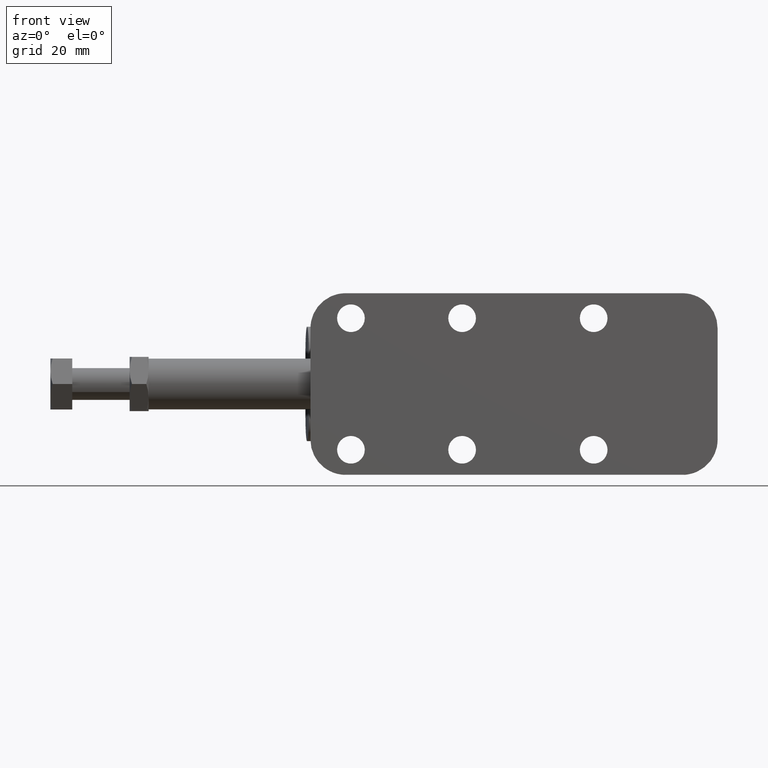
[diagram: clean part render]
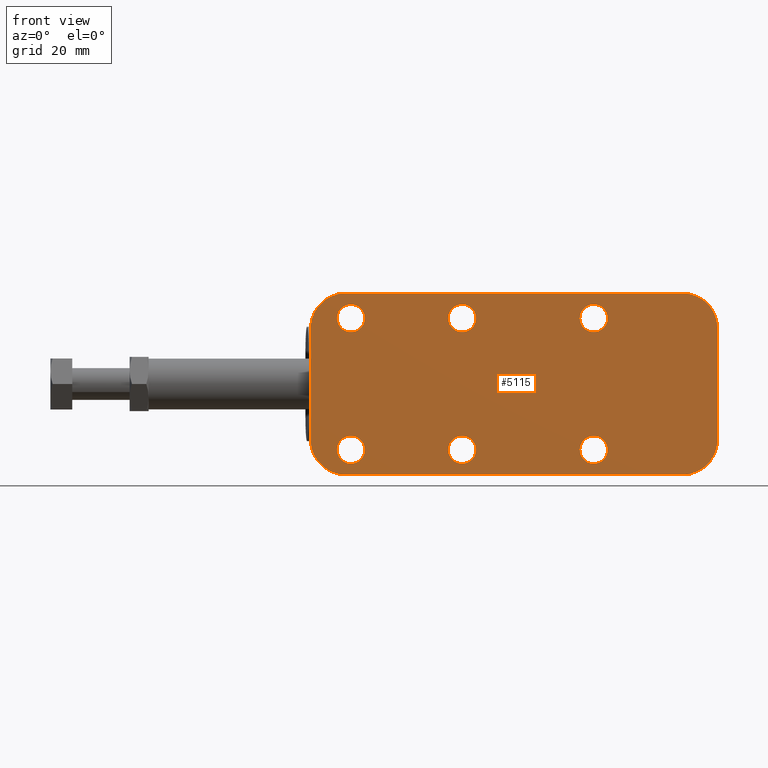
[diagram: same view with one face highlighted and labeled with its STEP entity id]
A machine part, front view. The second image highlights one B-rep face of the part: STEP entity #5115.
In plain terms, the highlighted planar face has unit normal (0, 1, 0).
Its self-contained STEP definition (entity closure, byte-faithful):
#9 = AXIS2_PLACEMENT_3D ( 'NONE', #6229, #4620, #496 ) ;
#20 = CARTESIAN_POINT ( 'NONE',  ( 17.05000000000000100, 0.0000000000000000000, 20.64999999999999900 ) ) ;
#29 = EDGE_CURVE ( 'NONE', #6149, #2345, #2316, .T. ) ;
#46 = DIRECTION ( 'NONE',  ( -1.000000000000000000, -0.0000000000000000000, 0.0000000000000000000 ) ) ;
#76 = CARTESIAN_POINT ( 'NONE',  ( 43.25000000000000000, 0.0000000000000000000, -20.65000000000001300 ) ) ;
#104 = DIRECTION ( 'NONE',  ( 1.000000000000000000, 0.0000000000000000000, 0.0000000000000000000 ) ) ;
#132 = DIRECTION ( 'NONE',  ( 0.0000000000000000000, 1.000000000000000000, 0.0000000000000000000 ) ) ;
#158 = LINE ( 'NONE', #5240, #2599 ) ;
#203 = CARTESIAN_POINT ( 'NONE',  ( 8.349999999999994300, 0.0000000000000000000, -20.64999999999999900 ) ) ;
#243 = CARTESIAN_POINT ( 'NONE',  ( 12.69999999999999900, 0.0000000000000000000, 20.64999999999999900 ) ) ;
#246 = CARTESIAN_POINT ( 'NONE',  ( 0.0000000000000000000, 0.0000000000000000000, -17.49999999999998900 ) ) ;
#260 = DIRECTION ( 'NONE',  ( 1.000000000000000000, 0.0000000000000000000, 0.0000000000000000000 ) ) ;
#279 = AXIS2_PLACEMENT_3D ( 'NONE', #6369, #3228, #104 ) ;
#350 = CARTESIAN_POINT ( 'NONE',  ( 127.8000000000000000, 0.0000000000000000000, -17.49999999999991500 ) ) ;
#396 = DIRECTION ( 'NONE',  ( 1.000000000000000000, 0.0000000000000000000, 0.0000000000000000000 ) ) ;
#427 = EDGE_CURVE ( 'NONE', #3949, #870, #2567, .T. ) ;
#496 = DIRECTION ( 'NONE',  ( 1.000000000000000000, 0.0000000000000000000, 0.0000000000000000000 ) ) ;
#527 = ORIENTED_EDGE ( 'NONE', *, *, #5809, .T. ) ;
#557 = DIRECTION ( 'NONE',  ( 0.0000000000000000000, 0.0000000000000000000, -1.000000000000000000 ) ) ;
#569 = DIRECTION ( 'NONE',  ( 0.0000000000000000000, 1.000000000000000000, 0.0000000000000000000 ) ) ;
#631 = CARTESIAN_POINT ( 'NONE',  ( 88.90000000000000600, 0.0000000000000000000, -20.65000000000002000 ) ) ;
#660 = AXIS2_PLACEMENT_3D ( 'NONE', #631, #4242, #1135 ) ;
#705 = AXIS2_PLACEMENT_3D ( 'NONE', #1041, #4662, #1559 ) ;
#740 = DIRECTION ( 'NONE',  ( 1.000000000000000000, 0.0000000000000000000, 0.0000000000000000000 ) ) ;
#772 = EDGE_LOOP ( 'NONE', ( #6240, #4571 ) ) ;
#776 = ORIENTED_EDGE ( 'NONE', *, *, #2353, .F. ) ;
#824 = AXIS2_PLACEMENT_3D ( 'NONE', #1161, #4808, #858 ) ;
#836 = FACE_OUTER_BOUND ( 'NONE', #1457, .T. ) ;
#851 = ORIENTED_EDGE ( 'NONE', *, *, #5134, .T. ) ;
#858 = DIRECTION ( 'NONE',  ( 1.000000000000000000, 0.0000000000000000000, 0.0000000000000000000 ) ) ;
#870 = VERTEX_POINT ( 'NONE', #246 ) ;
#889 = CARTESIAN_POINT ( 'NONE',  ( 12.69999999999999400, 0.0000000000000000000, -20.64999999999999900 ) ) ;
#894 = CARTESIAN_POINT ( 'NONE',  ( 51.95000000000000300, 0.0000000000000000000, 20.64999999999999900 ) ) ;
#928 = ORIENTED_EDGE ( 'NONE', *, *, #5400, .T. ) ;
#935 = DIRECTION ( 'NONE',  ( 0.0000000000000000000, 1.000000000000000000, 0.0000000000000000000 ) ) ;
#946 = VERTEX_POINT ( 'NONE', #4659 ) ;
#969 = CARTESIAN_POINT ( 'NONE',  ( 127.8000000000000000, 0.0000000000000000000, 28.50000000000000700 ) ) ;
#979 = DIRECTION ( 'NONE',  ( 1.000000000000000000, 0.0000000000000000000, 0.0000000000000000000 ) ) ;
#1003 = ORIENTED_EDGE ( 'NONE', *, *, #3844, .T. ) ;
#1023 = VERTEX_POINT ( 'NONE', #5728 ) ;
#1041 = CARTESIAN_POINT ( 'NONE',  ( 47.59999999999999400, 0.0000000000000000000, -20.65000000000001300 ) ) ;
#1135 = DIRECTION ( 'NONE',  ( 1.000000000000000000, 0.0000000000000000000, 0.0000000000000000000 ) ) ;
#1139 = CIRCLE ( 'NONE', #279, 4.350000000000006800 ) ;
#1146 = CIRCLE ( 'NONE', #5205, 4.349999999999999600 ) ;
#1155 = FACE_BOUND ( 'NONE', #772, .T. ) ;
#1161 = CARTESIAN_POINT ( 'NONE',  ( 12.69999999999999400, 0.0000000000000000000, -20.64999999999999900 ) ) ;
#1252 = VECTOR ( 'NONE', #46, 1000.000000000000000 ) ;
#1260 = VERTEX_POINT ( 'NONE', #2664 ) ;
#1368 = ORIENTED_EDGE ( 'NONE', *, *, #4939, .T. ) ;
#1388 = CARTESIAN_POINT ( 'NONE',  ( 93.25000000000001400, 0.0000000000000000000, -20.65000000000002000 ) ) ;
#1399 = AXIS2_PLACEMENT_3D ( 'NONE', #243, #3851, #740 ) ;
#1457 = EDGE_LOOP ( 'NONE', ( #3786, #1527, #4352, #776, #5299, #1793, #3144, #3421 ) ) ;
#1494 = CIRCLE ( 'NONE', #4754, 4.349999999999999600 ) ;
#1504 = DIRECTION ( 'NONE',  ( 0.0000000000000000000, 1.000000000000000000, 0.0000000000000000000 ) ) ;
#1527 = ORIENTED_EDGE ( 'NONE', *, *, #4811, .F. ) ;
#1541 = EDGE_CURVE ( 'NONE', #6621, #946, #3653, .T. ) ;
#1559 = DIRECTION ( 'NONE',  ( 1.000000000000000000, 0.0000000000000000000, 0.0000000000000000000 ) ) ;
#1565 = CARTESIAN_POINT ( 'NONE',  ( 116.7999999999999100, 1.110223024625156500E-013, -28.49999999999998600 ) ) ;
#1590 = EDGE_CURVE ( 'NONE', #5048, #6011, #2124, .T. ) ;
#1603 = VERTEX_POINT ( 'NONE', #5559 ) ;
#1697 = VERTEX_POINT ( 'NONE', #6286 ) ;
#1793 = ORIENTED_EDGE ( 'NONE', *, *, #4709, .T. ) ;
#1861 = EDGE_LOOP ( 'NONE', ( #1003, #851 ) ) ;
#2072 = ORIENTED_EDGE ( 'NONE', *, *, #5251, .T. ) ;
#2076 = CARTESIAN_POINT ( 'NONE',  ( 88.90000000000000600, 0.0000000000000000000, -20.65000000000002000 ) ) ;
#2085 = CARTESIAN_POINT ( 'NONE',  ( 88.90000000000000600, 0.0000000000000000000, 20.64999999999999900 ) ) ;
#2124 = CIRCLE ( 'NONE', #5357, 4.350000000000001400 ) ;
#2164 = CARTESIAN_POINT ( 'NONE',  ( 47.60000000000000100, 0.0000000000000000000, 20.64999999999999900 ) ) ;
#2227 = AXIS2_PLACEMENT_3D ( 'NONE', #4045, #935, #4560 ) ;
#2237 = FACE_BOUND ( 'NONE', #5567, .T. ) ;
#2307 = DIRECTION ( 'NONE',  ( 1.000000000000000000, 0.0000000000000000000, 0.0000000000000000000 ) ) ;
#2316 = CIRCLE ( 'NONE', #5476, 10.99999999999999600 ) ;
#2345 = VERTEX_POINT ( 'NONE', #1565 ) ;
#2353 = EDGE_CURVE ( 'NONE', #1697, #6149, #158, .T. ) ;
#2401 = FACE_BOUND ( 'NONE', #6737, .T. ) ;
#2486 = CIRCLE ( 'NONE', #5098, 4.349999999999999600 ) ;
#2553 = DIRECTION ( 'NONE',  ( -1.000000000000000000, -0.0000000000000000000, 0.0000000000000000000 ) ) ;
#2567 = LINE ( 'NONE', #4638, #6583 ) ;
#2599 = VECTOR ( 'NONE', #557, 1000.000000000000000 ) ;
#2606 = DIRECTION ( 'NONE',  ( 1.000000000000000000, 0.0000000000000000000, 0.0000000000000000000 ) ) ;
#2636 = AXIS2_PLACEMENT_3D ( 'NONE', #6108, #2980, #6642 ) ;
#2648 = CARTESIAN_POINT ( 'NONE',  ( 127.8000000000000000, 0.0000000000000000000, -28.49999999999998600 ) ) ;
#2664 = CARTESIAN_POINT ( 'NONE',  ( 8.349999999999999600, 0.0000000000000000000, 20.64999999999999900 ) ) ;
#2682 = CARTESIAN_POINT ( 'NONE',  ( 116.8000000000000000, 0.0000000000000000000, 17.50000000000000700 ) ) ;
#2692 = AXIS2_PLACEMENT_3D ( 'NONE', #3669, #569, #4179 ) ;
#2693 = DIRECTION ( 'NONE',  ( 1.000000000000000000, 0.0000000000000000000, 0.0000000000000000000 ) ) ;
#2841 = CARTESIAN_POINT ( 'NONE',  ( 43.25000000000000700, 0.0000000000000000000, 20.64999999999999900 ) ) ;
#2862 = VERTEX_POINT ( 'NONE', #76 ) ;
#2980 = DIRECTION ( 'NONE',  ( 0.0000000000000000000, 1.000000000000000000, 0.0000000000000000000 ) ) ;
#3000 = CARTESIAN_POINT ( 'NONE',  ( 11.00000000000007800, 0.0000000000000000000, 28.50000000000000700 ) ) ;
#3144 = ORIENTED_EDGE ( 'NONE', *, *, #5571, .F. ) ;
#3201 = DIRECTION ( 'NONE',  ( 1.000000000000000000, 0.0000000000000000000, 0.0000000000000000000 ) ) ;
#3215 = EDGE_CURVE ( 'NONE', #3329, #870, #6599, .T. ) ;
#3228 = DIRECTION ( 'NONE',  ( 0.0000000000000000000, 1.000000000000000000, 0.0000000000000000000 ) ) ;
#3231 = EDGE_LOOP ( 'NONE', ( #5106, #527 ) ) ;
#3250 = CARTESIAN_POINT ( 'NONE',  ( 47.59999999999999400, 0.0000000000000000000, -20.65000000000001300 ) ) ;
#3292 = CIRCLE ( 'NONE', #2636, 11.00000000000000000 ) ;
#3329 = VERTEX_POINT ( 'NONE', #6244 ) ;
#3367 = DIRECTION ( 'NONE',  ( 0.0000000000000000000, 1.000000000000000000, 0.0000000000000000000 ) ) ;
#3378 = CIRCLE ( 'NONE', #824, 4.350000000000001400 ) ;
#3395 = CIRCLE ( 'NONE', #4127, 10.99999999999999600 ) ;
#3421 = ORIENTED_EDGE ( 'NONE', *, *, #427, .T. ) ;
#3537 = CIRCLE ( 'NONE', #2692, 4.349999999999999600 ) ;
#3593 = AXIS2_PLACEMENT_3D ( 'NONE', #2085, #4868, #2307 ) ;
#3607 = FACE_BOUND ( 'NONE', #3231, .T. ) ;
#3614 = VECTOR ( 'NONE', #2553, 1000.000000000000000 ) ;
#3653 = CIRCLE ( 'NONE', #3593, 4.350000000000006800 ) ;
#3669 = CARTESIAN_POINT ( 'NONE',  ( 47.60000000000000100, 0.0000000000000000000, 20.64999999999999900 ) ) ;
#3752 = DIRECTION ( 'NONE',  ( 1.000000000000000000, 0.0000000000000000000, 0.0000000000000000000 ) ) ;
#3786 = ORIENTED_EDGE ( 'NONE', *, *, #3215, .F. ) ;
#3844 = EDGE_CURVE ( 'NONE', #1603, #2862, #2486, .T. ) ;
#3851 = DIRECTION ( 'NONE',  ( 0.0000000000000000000, 1.000000000000000000, 0.0000000000000000000 ) ) ;
#3949 = VERTEX_POINT ( 'NONE', #4850 ) ;
#4045 = CARTESIAN_POINT ( 'NONE',  ( 11.00000000000000000, 0.0000000000000000000, -17.49999999999998900 ) ) ;
#4122 = DIRECTION ( 'NONE',  ( 0.0000000000000000000, 0.0000000000000000000, -1.000000000000000000 ) ) ;
#4127 = AXIS2_PLACEMENT_3D ( 'NONE', #2682, #6334, #3201 ) ;
#4170 = VERTEX_POINT ( 'NONE', #3000 ) ;
#4179 = DIRECTION ( 'NONE',  ( 1.000000000000000000, 0.0000000000000000000, 0.0000000000000000000 ) ) ;
#4242 = DIRECTION ( 'NONE',  ( 0.0000000000000000000, 1.000000000000000000, 0.0000000000000000000 ) ) ;
#4280 = EDGE_CURVE ( 'NONE', #6765, #1697, #3395, .T. ) ;
#4352 = ORIENTED_EDGE ( 'NONE', *, *, #29, .F. ) ;
#4434 = VERTEX_POINT ( 'NONE', #2841 ) ;
#4560 = DIRECTION ( 'NONE',  ( 1.000000000000000000, 0.0000000000000000000, 0.0000000000000000000 ) ) ;
#4569 = CARTESIAN_POINT ( 'NONE',  ( 17.04999999999999700, 0.0000000000000000000, -20.64999999999999900 ) ) ;
#4571 = ORIENTED_EDGE ( 'NONE', *, *, #6686, .T. ) ;
#4596 = ORIENTED_EDGE ( 'NONE', *, *, #1590, .T. ) ;
#4610 = CARTESIAN_POINT ( 'NONE',  ( 116.8000000000000000, 0.0000000000000000000, -17.49999999999998900 ) ) ;
#4620 = DIRECTION ( 'NONE',  ( -0.0000000000000000000, 1.000000000000000000, 0.0000000000000000000 ) ) ;
#4638 = CARTESIAN_POINT ( 'NONE',  ( 0.0000000000000000000, 0.0000000000000000000, -28.49999999999998600 ) ) ;
#4659 = CARTESIAN_POINT ( 'NONE',  ( 84.54999999999999700, 0.0000000000000000000, 20.64999999999999900 ) ) ;
#4662 = DIRECTION ( 'NONE',  ( 0.0000000000000000000, 1.000000000000000000, 0.0000000000000000000 ) ) ;
#4680 = ORIENTED_EDGE ( 'NONE', *, *, #5126, .T. ) ;
#4709 = EDGE_CURVE ( 'NONE', #6765, #4170, #4998, .T. ) ;
#4754 = AXIS2_PLACEMENT_3D ( 'NONE', #2164, #5814, #2693 ) ;
#4786 = VERTEX_POINT ( 'NONE', #20 ) ;
#4808 = DIRECTION ( 'NONE',  ( 0.0000000000000000000, 1.000000000000000000, 0.0000000000000000000 ) ) ;
#4811 = EDGE_CURVE ( 'NONE', #2345, #3329, #5250, .T. ) ;
#4823 = CIRCLE ( 'NONE', #6461, 4.350000000000006800 ) ;
#4850 = CARTESIAN_POINT ( 'NONE',  ( 0.0000000000000000000, 0.0000000000000000000, 17.49999999999992900 ) ) ;
#4868 = DIRECTION ( 'NONE',  ( 0.0000000000000000000, 1.000000000000000000, 0.0000000000000000000 ) ) ;
#4939 = EDGE_CURVE ( 'NONE', #6011, #5048, #3378, .T. ) ;
#4989 = FACE_BOUND ( 'NONE', #5031, .T. ) ;
#4998 = LINE ( 'NONE', #969, #3614 ) ;
#5031 = EDGE_LOOP ( 'NONE', ( #4680, #2072 ) ) ;
#5048 = VERTEX_POINT ( 'NONE', #4569 ) ;
#5067 = CIRCLE ( 'NONE', #660, 4.350000000000006800 ) ;
#5098 = AXIS2_PLACEMENT_3D ( 'NONE', #3250, #132, #3752 ) ;
#5106 = ORIENTED_EDGE ( 'NONE', *, *, #1541, .T. ) ;
#5115 = ADVANCED_FACE ( 'NONE', ( #1155, #3607, #6415, #4989, #2401, #2237, #836 ), #6758, .F. ) ;
#5126 = EDGE_CURVE ( 'NONE', #6188, #1023, #4823, .T. ) ;
#5134 = EDGE_CURVE ( 'NONE', #2862, #1603, #6067, .T. ) ;
#5163 = CARTESIAN_POINT ( 'NONE',  ( 93.25000000000001400, 0.0000000000000000000, 20.64999999999999900 ) ) ;
#5205 = AXIS2_PLACEMENT_3D ( 'NONE', #6514, #3367, #260 ) ;
#5240 = CARTESIAN_POINT ( 'NONE',  ( 127.8000000000000000, 0.0000000000000000000, -28.49999999999998600 ) ) ;
#5250 = LINE ( 'NONE', #2648, #1252 ) ;
#5251 = EDGE_CURVE ( 'NONE', #1023, #6188, #5067, .T. ) ;
#5299 = ORIENTED_EDGE ( 'NONE', *, *, #4280, .F. ) ;
#5357 = AXIS2_PLACEMENT_3D ( 'NONE', #889, #6120, #396 ) ;
#5400 = EDGE_CURVE ( 'NONE', #1260, #4786, #1146, .T. ) ;
#5476 = AXIS2_PLACEMENT_3D ( 'NONE', #4610, #1504, #979 ) ;
#5559 = CARTESIAN_POINT ( 'NONE',  ( 51.94999999999999600, 0.0000000000000000000, -20.65000000000001300 ) ) ;
#5567 = EDGE_LOOP ( 'NONE', ( #4596, #1368 ) ) ;
#5571 = EDGE_CURVE ( 'NONE', #3949, #4170, #3292, .T. ) ;
#5590 = VERTEX_POINT ( 'NONE', #894 ) ;
#5724 = DIRECTION ( 'NONE',  ( 0.0000000000000000000, 1.000000000000000000, 0.0000000000000000000 ) ) ;
#5728 = CARTESIAN_POINT ( 'NONE',  ( 84.54999999999999700, 0.0000000000000000000, -20.65000000000002000 ) ) ;
#5809 = EDGE_CURVE ( 'NONE', #946, #6621, #1139, .T. ) ;
#5814 = DIRECTION ( 'NONE',  ( 0.0000000000000000000, 1.000000000000000000, 0.0000000000000000000 ) ) ;
#6011 = VERTEX_POINT ( 'NONE', #203 ) ;
#6067 = CIRCLE ( 'NONE', #705, 4.349999999999999600 ) ;
#6108 = CARTESIAN_POINT ( 'NONE',  ( 11.00000000000000000, 0.0000000000000000000, 17.50000000000000700 ) ) ;
#6120 = DIRECTION ( 'NONE',  ( 0.0000000000000000000, 1.000000000000000000, 0.0000000000000000000 ) ) ;
#6127 = CIRCLE ( 'NONE', #1399, 4.349999999999999600 ) ;
#6149 = VERTEX_POINT ( 'NONE', #350 ) ;
#6188 = VERTEX_POINT ( 'NONE', #1388 ) ;
#6229 = CARTESIAN_POINT ( 'NONE',  ( 127.8000000000000000, 0.0000000000000000000, -28.49999999999998600 ) ) ;
#6240 = ORIENTED_EDGE ( 'NONE', *, *, #6711, .T. ) ;
#6244 = CARTESIAN_POINT ( 'NONE',  ( 11.00000000000007800, 0.0000000000000000000, -28.49999999999998600 ) ) ;
#6286 = CARTESIAN_POINT ( 'NONE',  ( 127.8000000000000000, 0.0000000000000000000, 17.50000000000001100 ) ) ;
#6334 = DIRECTION ( 'NONE',  ( 0.0000000000000000000, 1.000000000000000000, 0.0000000000000000000 ) ) ;
#6369 = CARTESIAN_POINT ( 'NONE',  ( 88.90000000000000600, 0.0000000000000000000, 20.64999999999999900 ) ) ;
#6374 = CARTESIAN_POINT ( 'NONE',  ( 116.7999999999999100, 0.0000000000000000000, 28.50000000000000400 ) ) ;
#6415 = FACE_BOUND ( 'NONE', #1861, .T. ) ;
#6421 = EDGE_CURVE ( 'NONE', #4786, #1260, #6127, .T. ) ;
#6461 = AXIS2_PLACEMENT_3D ( 'NONE', #2076, #5724, #2606 ) ;
#6514 = CARTESIAN_POINT ( 'NONE',  ( 12.69999999999999900, 0.0000000000000000000, 20.64999999999999900 ) ) ;
#6583 = VECTOR ( 'NONE', #4122, 1000.000000000000000 ) ;
#6599 = CIRCLE ( 'NONE', #2227, 11.00000000000000000 ) ;
#6621 = VERTEX_POINT ( 'NONE', #5163 ) ;
#6642 = DIRECTION ( 'NONE',  ( 1.000000000000000000, 0.0000000000000000000, 0.0000000000000000000 ) ) ;
#6660 = ORIENTED_EDGE ( 'NONE', *, *, #6421, .T. ) ;
#6686 = EDGE_CURVE ( 'NONE', #4434, #5590, #3537, .T. ) ;
#6711 = EDGE_CURVE ( 'NONE', #5590, #4434, #1494, .T. ) ;
#6737 = EDGE_LOOP ( 'NONE', ( #6660, #928 ) ) ;
#6758 = PLANE ( 'NONE',  #9 ) ;
#6765 = VERTEX_POINT ( 'NONE', #6374 ) ;